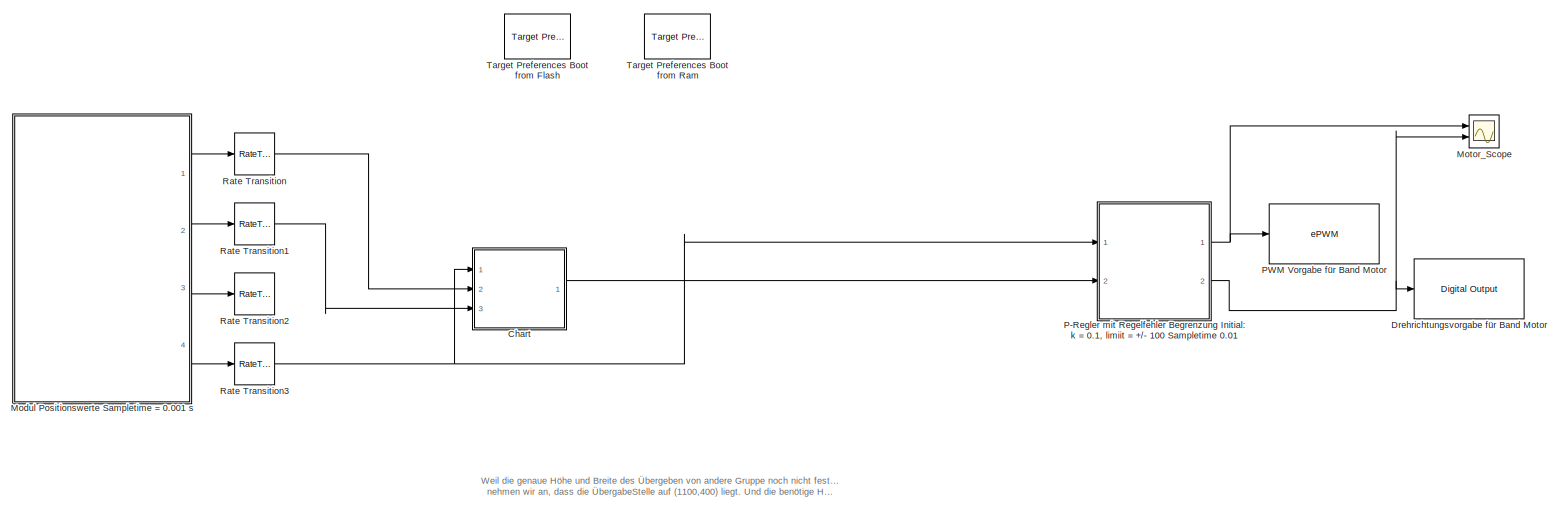
[diagram: root canvas - part 1/1, most of the canvas]
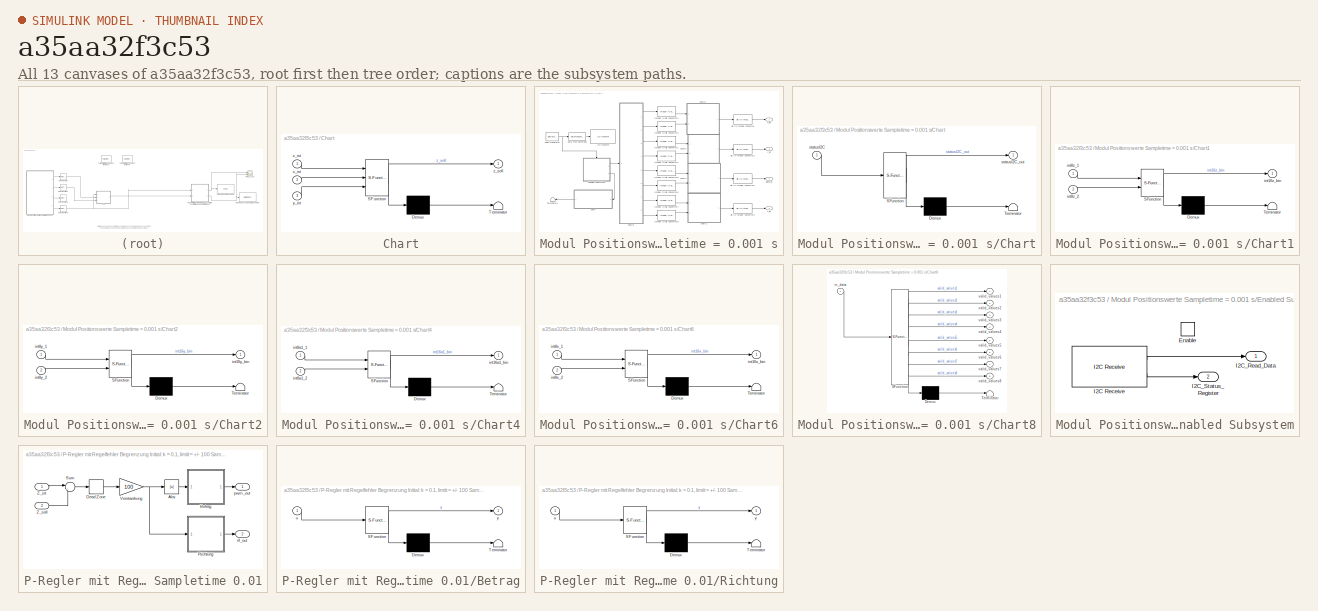
[diagram: thumbnail index - all 13 canvases of the model, root first then tree order]
MODEL slx_a35aa32f3c53
KIND model
BLOCK [SubSystem] Chart
  ErrorFcn = Stateflow.Translate.translate
  FunctionWithSeparateData = off
  MaskHideContents = off
  MinAlgLoopOccurrences = off
  Opaque = off
  PermitHierarchicalResolution = ExplicitOnly
  Ports = [3, 1]
  PropExecContextOutsideSubsystem = off
  RTWSystemCode = Auto
  RequestExecContextInheritance = off
  SFBlockType = Chart
  TreatAsAtomicUnit = on
BLOCK [Demux] Chart/ Demux 
  Outputs = 1
  Ports = [1, 1]
BLOCK [S-Function] Chart/ SFunction 
  EnableBusSupport = off
  FunctionName = sf_sfun
  PortCounts = [3 2]
  Ports = [3, 2]
  Tag = Stateflow S-Function Uebergeben 1
BLOCK [Terminator] Chart/ Terminator 
BLOCK [Inport] Chart/x_ist
  IconDisplay = Port number
  Port = 2
BLOCK [Inport] Chart/y_ist
  IconDisplay = Port number
  Port = 3
BLOCK [Inport] Chart/z_ist
  IconDisplay = Port number
BLOCK [Outport] Chart/z_soll
  IconDisplay = Port number
BLOCK [Reference] Drehrichtungsvorgabe für Band Motor  REF=c2833xlib/Digital Output
  GPIO_BIT0_Toggle = off
  GPIO_BIT1_Toggle = off
  GPIO_BIT2_Toggle = off
  GPIO_BIT3_Toggle = off
  GPIO_BIT4_Toggle = off
  GPIO_BIT5_Toggle = off
  GPIO_BIT6_Toggle = off
  GPIO_BIT7_Toggle = off
  GPIO_Bit0 = off
  GPIO_Bit1 = off
  GPIO_Bit2 = off
  GPIO_Bit3 = off
  GPIO_Bit4 = off
  GPIO_Bit5 = on
  GPIO_Bit6 = off
  GPIO_Bit7 = off
  GPIO_Number = GPIO16~GPIO23
  Ports = [1]
  SourceBlock = c2833xlib/Digital Output
  SourceType = C2833x GPIO Digital Output
  UserDataPersistent = on
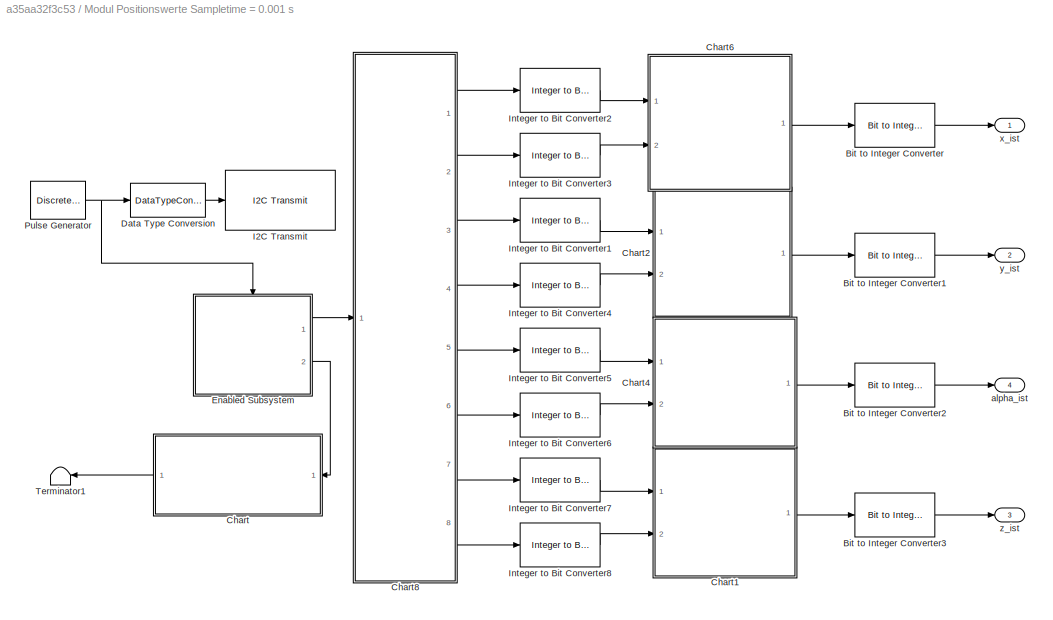
BLOCK [SubSystem] Modul Positionswerte Sampletime = 0.001 s
  FunctionWithSeparateData = off
  MaskHideContents = off
  MinAlgLoopOccurrences = off
  Opaque = off
  Ports = [0, 4]
  PropExecContextOutsideSubsystem = off
  RTWSystemCode = Auto
  RequestExecContextInheritance = off
BLOCK [Reference] Modul Positionswerte Sampletime = 0.001 s/Bit to Integer Converter  REF=commutil2/Bit to Integer
Converter
  Ports = [1, 1]
  SourceBlock = commutil2/Bit to Integer\nConverter
  SourceType = Bit to Integer Converter
  bitOrder = MSB first
  nbits = 16
  outDtype = Inherit via internal rule
  outDtypeSigned = Inherit via internal rule
  signedOutputValues = Signed
BLOCK [Reference] Modul Positionswerte Sampletime = 0.001 s/Bit to Integer Converter1  REF=commutil2/Bit to Integer
Converter
  Ports = [1, 1]
  SourceBlock = commutil2/Bit to Integer\nConverter
  SourceType = Bit to Integer Converter
  bitOrder = MSB first
  nbits = 16
  outDtype = Inherit via internal rule
  outDtypeSigned = Inherit via internal rule
  signedOutputValues = Signed
BLOCK [Reference] Modul Positionswerte Sampletime = 0.001 s/Bit to Integer Converter2  REF=commutil2/Bit to Integer
Converter
  Ports = [1, 1]
  SourceBlock = commutil2/Bit to Integer\nConverter
  SourceType = Bit to Integer Converter
  bitOrder = MSB first
  nbits = 16
  outDtype = Inherit via internal rule
  outDtypeSigned = Inherit via internal rule
  signedOutputValues = Signed
BLOCK [Reference] Modul Positionswerte Sampletime = 0.001 s/Bit to Integer Converter3  REF=commutil2/Bit to Integer
Converter
  Ports = [1, 1]
  SourceBlock = commutil2/Bit to Integer\nConverter
  SourceType = Bit to Integer Converter
  bitOrder = MSB first
  nbits = 16
  outDtype = Inherit via internal rule
  outDtypeSigned = Inherit via internal rule
  signedOutputValues = Signed
BLOCK [SubSystem] Modul Positionswerte Sampletime = 0.001 s/Chart
  ErrorFcn = Stateflow.Translate.translate
  FunctionWithSeparateData = off
  MaskHideContents = off
  MinAlgLoopOccurrences = off
  Opaque = off
  PermitHierarchicalResolution = ExplicitOnly
  Ports = [1, 1]
  PropExecContextOutsideSubsystem = off
  RTWSystemCode = Auto
  RequestExecContextInheritance = off
  SFBlockType = Chart
  TreatAsAtomicUnit = on
BLOCK [Demux] Modul Positionswerte Sampletime = 0.001 s/Chart/ Demux 
  Outputs = 1
  Ports = [1, 1]
BLOCK [S-Function] Modul Positionswerte Sampletime = 0.001 s/Chart/ SFunction 
  EnableBusSupport = on
  FunctionName = sf_sfun
  PortCounts = [1 2]
  Ports = [1, 2]
  Tag = Stateflow S-Function Uebergeben 21
BLOCK [Terminator] Modul Positionswerte Sampletime = 0.001 s/Chart/ Terminator 
BLOCK [Inport] Modul Positionswerte Sampletime = 0.001 s/Chart/statusI2C
  IconDisplay = Port number
BLOCK [Outport] Modul Positionswerte Sampletime = 0.001 s/Chart/statusI2C_out
  IconDisplay = Port number
BLOCK [SubSystem] Modul Positionswerte Sampletime = 0.001 s/Chart1
  ErrorFcn = Stateflow.Translate.translate
  FunctionWithSeparateData = off
  MaskHideContents = off
  MinAlgLoopOccurrences = off
  Opaque = off
  PermitHierarchicalResolution = ExplicitOnly
  Ports = [2, 1]
  PropExecContextOutsideSubsystem = off
  RTWSystemCode = Auto
  RequestExecContextInheritance = off
  SFBlockType = Chart
  TreatAsAtomicUnit = on
BLOCK [Demux] Modul Positionswerte Sampletime = 0.001 s/Chart1/ Demux 
  Outputs = 1
  Ports = [1, 1]
BLOCK [S-Function] Modul Positionswerte Sampletime = 0.001 s/Chart1/ SFunction 
  EnableBusSupport = off
  FunctionName = sf_sfun
  PortCounts = [2 2]
  Ports = [2, 2]
  Tag = Stateflow S-Function Uebergeben 2
BLOCK [Terminator] Modul Positionswerte Sampletime = 0.001 s/Chart1/ Terminator 
BLOCK [Outport] Modul Positionswerte Sampletime = 0.001 s/Chart1/int16z_bin
  IconDisplay = Port number
BLOCK [Inport] Modul Positionswerte Sampletime = 0.001 s/Chart1/int8z_1
  IconDisplay = Port number
BLOCK [Inport] Modul Positionswerte Sampletime = 0.001 s/Chart1/int8z_2
  IconDisplay = Port number
  Port = 2
BLOCK [SubSystem] Modul Positionswerte Sampletime = 0.001 s/Chart2
  ErrorFcn = Stateflow.Translate.translate
  FunctionWithSeparateData = off
  MaskHideContents = off
  MinAlgLoopOccurrences = off
  Opaque = off
  PermitHierarchicalResolution = ExplicitOnly
  Ports = [2, 1]
  PropExecContextOutsideSubsystem = off
  RTWSystemCode = Auto
  RequestExecContextInheritance = off
  SFBlockType = Chart
  TreatAsAtomicUnit = on
BLOCK [Demux] Modul Positionswerte Sampletime = 0.001 s/Chart2/ Demux 
  Outputs = 1
  Ports = [1, 1]
BLOCK [S-Function] Modul Positionswerte Sampletime = 0.001 s/Chart2/ SFunction 
  EnableBusSupport = off
  FunctionName = sf_sfun
  PortCounts = [2 2]
  Ports = [2, 2]
  Tag = Stateflow S-Function Uebergeben 3
BLOCK [Terminator] Modul Positionswerte Sampletime = 0.001 s/Chart2/ Terminator 
BLOCK [Outport] Modul Positionswerte Sampletime = 0.001 s/Chart2/int16y_bin
  IconDisplay = Port number
BLOCK [Inport] Modul Positionswerte Sampletime = 0.001 s/Chart2/int8y_1
  IconDisplay = Port number
BLOCK [Inport] Modul Positionswerte Sampletime = 0.001 s/Chart2/int8y_2
  IconDisplay = Port number
  Port = 2
BLOCK [SubSystem] Modul Positionswerte Sampletime = 0.001 s/Chart4
  ErrorFcn = Stateflow.Translate.translate
  FunctionWithSeparateData = off
  MaskHideContents = off
  MinAlgLoopOccurrences = off
  Opaque = off
  PermitHierarchicalResolution = ExplicitOnly
  Ports = [2, 1]
  PropExecContextOutsideSubsystem = off
  RTWSystemCode = Auto
  RequestExecContextInheritance = off
  SFBlockType = Chart
  TreatAsAtomicUnit = on
BLOCK [Demux] Modul Positionswerte Sampletime = 0.001 s/Chart4/ Demux 
  Outputs = 1
  Ports = [1, 1]
BLOCK [S-Function] Modul Positionswerte Sampletime = 0.001 s/Chart4/ SFunction 
  EnableBusSupport = off
  FunctionName = sf_sfun
  PortCounts = [2 2]
  Ports = [2, 2]
  Tag = Stateflow S-Function Uebergeben 5
BLOCK [Terminator] Modul Positionswerte Sampletime = 0.001 s/Chart4/ Terminator 
BLOCK [Outport] Modul Positionswerte Sampletime = 0.001 s/Chart4/int16a1_bin
  IconDisplay = Port number
BLOCK [Inport] Modul Positionswerte Sampletime = 0.001 s/Chart4/int8a1_1
  IconDisplay = Port number
BLOCK [Inport] Modul Positionswerte Sampletime = 0.001 s/Chart4/int8a1_2
  IconDisplay = Port number
  Port = 2
BLOCK [SubSystem] Modul Positionswerte Sampletime = 0.001 s/Chart6
  ErrorFcn = Stateflow.Translate.translate
  FunctionWithSeparateData = off
  MaskHideContents = off
  MinAlgLoopOccurrences = off
  Opaque = off
  PermitHierarchicalResolution = ExplicitOnly
  Ports = [2, 1]
  PropExecContextOutsideSubsystem = off
  RTWSystemCode = Auto
  RequestExecContextInheritance = off
  SFBlockType = Chart
  TreatAsAtomicUnit = on
BLOCK [Demux] Modul Positionswerte Sampletime = 0.001 s/Chart6/ Demux 
  Outputs = 1
  Ports = [1, 1]
BLOCK [S-Function] Modul Positionswerte Sampletime = 0.001 s/Chart6/ SFunction 
  EnableBusSupport = off
  FunctionName = sf_sfun
  PortCounts = [2 2]
  Ports = [2, 2]
  Tag = Stateflow S-Function Uebergeben 7
BLOCK [Terminator] Modul Positionswerte Sampletime = 0.001 s/Chart6/ Terminator 
BLOCK [Outport] Modul Positionswerte Sampletime = 0.001 s/Chart6/int16x_bin
  IconDisplay = Port number
BLOCK [Inport] Modul Positionswerte Sampletime = 0.001 s/Chart6/int8x_1
  IconDisplay = Port number
BLOCK [Inport] Modul Positionswerte Sampletime = 0.001 s/Chart6/int8x_2
  IconDisplay = Port number
  Port = 2
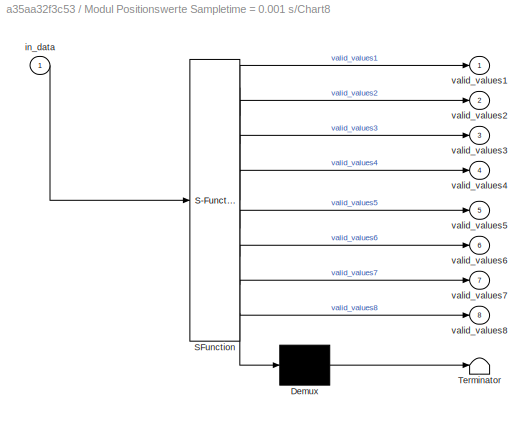
BLOCK [SubSystem] Modul Positionswerte Sampletime = 0.001 s/Chart8
  ErrorFcn = Stateflow.Translate.translate
  FunctionWithSeparateData = off
  MaskHideContents = off
  MinAlgLoopOccurrences = off
  Opaque = off
  PermitHierarchicalResolution = ExplicitOnly
  Ports = [1, 8]
  PropExecContextOutsideSubsystem = off
  RTWSystemCode = Auto
  RequestExecContextInheritance = off
  SFBlockType = Chart
  TreatAsAtomicUnit = on
BLOCK [Demux] Modul Positionswerte Sampletime = 0.001 s/Chart8/ Demux 
  Outputs = 1
  Ports = [1, 1]
BLOCK [S-Function] Modul Positionswerte Sampletime = 0.001 s/Chart8/ SFunction 
  EnableBusSupport = off
  FunctionName = sf_sfun
  PortCounts = [1 9]
  Ports = [1, 9]
  Tag = Stateflow S-Function Uebergeben 9
BLOCK [Terminator] Modul Positionswerte Sampletime = 0.001 s/Chart8/ Terminator 
BLOCK [Inport] Modul Positionswerte Sampletime = 0.001 s/Chart8/in_data
  IconDisplay = Port number
BLOCK [Outport] Modul Positionswerte Sampletime = 0.001 s/Chart8/valid_values1
  IconDisplay = Port number
BLOCK [Outport] Modul Positionswerte Sampletime = 0.001 s/Chart8/valid_values2
  IconDisplay = Port number
  Port = 2
BLOCK [Outport] Modul Positionswerte Sampletime = 0.001 s/Chart8/valid_values3
  IconDisplay = Port number
  Port = 3
BLOCK [Outport] Modul Positionswerte Sampletime = 0.001 s/Chart8/valid_values4
  IconDisplay = Port number
  Port = 4
BLOCK [Outport] Modul Positionswerte Sampletime = 0.001 s/Chart8/valid_values5
  IconDisplay = Port number
  Port = 5
BLOCK [Outport] Modul Positionswerte Sampletime = 0.001 s/Chart8/valid_values6
  IconDisplay = Port number
  Port = 6
BLOCK [Outport] Modul Positionswerte Sampletime = 0.001 s/Chart8/valid_values7
  IconDisplay = Port number
  Port = 7
BLOCK [Outport] Modul Positionswerte Sampletime = 0.001 s/Chart8/valid_values8
  IconDisplay = Port number
  Port = 8
BLOCK [DataTypeConversion] Modul Positionswerte Sampletime = 0.001 s/Data Type Conversion
  OutDataTypeStr = uint8
  RndMeth = Floor
  SaturateOnIntegerOverflow = off
BLOCK [SubSystem] Modul Positionswerte Sampletime = 0.001 s/Enabled Subsystem
  FunctionWithSeparateData = off
  MaskHideContents = off
  MinAlgLoopOccurrences = off
  Opaque = off
  Ports = [0, 2, 1]
  PropExecContextOutsideSubsystem = off
  RTWSystemCode = Auto
  RequestExecContextInheritance = off
  TreatAsAtomicUnit = on
BLOCK [EnablePort] Modul Positionswerte Sampletime = 0.001 s/Enabled Subsystem/Enable
  Ports = []
  StatesWhenEnabling = reset
BLOCK [Reference] Modul Positionswerte Sampletime = 0.001 s/Enabled Subsystem/I2C Receive  REF=c280xlib/I2C Receive
  NACK = on
  Ports = [0, 2]
  SAR = 80
  STP = off
  STR = on
  SourceBlock = c280xlib/I2C Receive
  SourceType = C28x I2C Receive
  addrFormat = 7-Bit addressing
  bitCount = 8
  dataLength = 10
  dataType = uint8
  initValue = 0
  saSource = Specify via dialog
  sampleTime = 0.001
BLOCK [Outport] Modul Positionswerte Sampletime = 0.001 s/Enabled Subsystem/I2C_Read_Data
  IconDisplay = Port number
BLOCK [Outport] Modul Positionswerte Sampletime = 0.001 s/Enabled Subsystem/I2C_Status_Register
  IconDisplay = Port number
  Port = 2
BLOCK [Reference] Modul Positionswerte Sampletime = 0.001 s/I2C Transmit  REF=c280xlib/I2C Transmit
  Ports = [1]
  RM = off
  SAR = 80
  STP = off
  STR = off
  SourceBlock = c280xlib/I2C Transmit
  SourceType = C28x I2C Transmit
  addrFormat = 7-Bit addressing
  bitCount = 8
  saSource = Specify via dialog
BLOCK [Reference] Modul Positionswerte Sampletime = 0.001 s/Integer to Bit Converter1  REF=commutil2/Integer to Bit
Converter
  Ports = [1, 1]
  SourceBlock = commutil2/Integer to Bit\nConverter
  SourceType = Integer to Bit Converter
  bitOrder = MSB first
  nbits = 8
  outDtype = uint8
  signedInputValues = Unsigned
BLOCK [Reference] Modul Positionswerte Sampletime = 0.001 s/Integer to Bit Converter2  REF=commutil2/Integer to Bit
Converter
  Ports = [1, 1]
  SourceBlock = commutil2/Integer to Bit\nConverter
  SourceType = Integer to Bit Converter
  bitOrder = MSB first
  nbits = 8
  outDtype = uint8
  signedInputValues = Unsigned
BLOCK [Reference] Modul Positionswerte Sampletime = 0.001 s/Integer to Bit Converter3  REF=commutil2/Integer to Bit
Converter
  Ports = [1, 1]
  SourceBlock = commutil2/Integer to Bit\nConverter
  SourceType = Integer to Bit Converter
  bitOrder = MSB first
  nbits = 8
  outDtype = uint8
  signedInputValues = Unsigned
BLOCK [Reference] Modul Positionswerte Sampletime = 0.001 s/Integer to Bit Converter4  REF=commutil2/Integer to Bit
Converter
  Ports = [1, 1]
  SourceBlock = commutil2/Integer to Bit\nConverter
  SourceType = Integer to Bit Converter
  bitOrder = MSB first
  nbits = 8
  outDtype = uint8
  signedInputValues = Unsigned
BLOCK [Reference] Modul Positionswerte Sampletime = 0.001 s/Integer to Bit Converter5  REF=commutil2/Integer to Bit
Converter
  Ports = [1, 1]
  SourceBlock = commutil2/Integer to Bit\nConverter
  SourceType = Integer to Bit Converter
  bitOrder = MSB first
  nbits = 8
  outDtype = uint8
  signedInputValues = Unsigned
BLOCK [Reference] Modul Positionswerte Sampletime = 0.001 s/Integer to Bit Converter6  REF=commutil2/Integer to Bit
Converter
  Ports = [1, 1]
  SourceBlock = commutil2/Integer to Bit\nConverter
  SourceType = Integer to Bit Converter
  bitOrder = MSB first
  nbits = 8
  outDtype = uint8
  signedInputValues = Unsigned
BLOCK [Reference] Modul Positionswerte Sampletime = 0.001 s/Integer to Bit Converter7  REF=commutil2/Integer to Bit
Converter
  Ports = [1, 1]
  SourceBlock = commutil2/Integer to Bit\nConverter
  SourceType = Integer to Bit Converter
  bitOrder = MSB first
  nbits = 8
  outDtype = uint8
  signedInputValues = Unsigned
BLOCK [Reference] Modul Positionswerte Sampletime = 0.001 s/Integer to Bit Converter8  REF=commutil2/Integer to Bit
Converter
  Ports = [1, 1]
  SourceBlock = commutil2/Integer to Bit\nConverter
  SourceType = Integer to Bit Converter
  bitOrder = MSB first
  nbits = 8
  outDtype = uint8
  signedInputValues = Unsigned
BLOCK [DiscretePulseGenerator] Modul Positionswerte Sampletime = 0.001 s/Pulse Generator
  Period = 250
  Ports = [0, 1]
  PulseWidth = 249
  SampleTime = 0.001
BLOCK [Terminator] Modul Positionswerte Sampletime = 0.001 s/Terminator1
BLOCK [Outport] Modul Positionswerte Sampletime = 0.001 s/alpha_ist
  IconDisplay = Port number
  Port = 4
BLOCK [Outport] Modul Positionswerte Sampletime = 0.001 s/x_ist
  IconDisplay = Port number
BLOCK [Outport] Modul Positionswerte Sampletime = 0.001 s/y_ist
  IconDisplay = Port number
  Port = 2
BLOCK [Outport] Modul Positionswerte Sampletime = 0.001 s/z_ist
  IconDisplay = Port number
  Port = 3
BLOCK [Scope] Motor_Scope
  DataFormat = StructureWithTime
  Floating = off
  NumInputPorts = 2
  Ports = [2]
  SampleTime = 0
  ShowLegends = off
  YMax = 5~5
  YMin = -5~-5
BLOCK [SubSystem] P-Regler mit Regelfehler Begrenzung Initial: k = 0.1, limiit = +//- 100 Sampletime 0.01
  FunctionWithSeparateData = off
  MaskHideContents = off
  MinAlgLoopOccurrences = off
  Opaque = off
  Ports = [2, 2]
  PropExecContextOutsideSubsystem = off
  RTWSystemCode = Auto
  RequestExecContextInheritance = off
BLOCK [Abs] P-Regler mit Regelfehler Begrenzung Initial: k = 0.1, limiit = +//- 100 Sampletime 0.01/Abs
  SampleTime = 0.01
  SaturateOnIntegerOverflow = off
BLOCK [SubSystem] P-Regler mit Regelfehler Begrenzung Initial: k = 0.1, limiit = +//- 100 Sampletime 0.01/Betrag
  ErrorFcn = Stateflow.Translate.translate
  FunctionWithSeparateData = off
  MaskHideContents = off
  MinAlgLoopOccurrences = off
  Opaque = off
  PermitHierarchicalResolution = ExplicitOnly
  Ports = [1, 1]
  PropExecContextOutsideSubsystem = off
  RTWSystemCode = Auto
  RequestExecContextInheritance = off
  SFBlockType = MATLAB Function
  SystemSampleTime = 0.01
  TreatAsAtomicUnit = on
BLOCK [Demux] P-Regler mit Regelfehler Begrenzung Initial: k = 0.1, limiit = +//- 100 Sampletime 0.01/Betrag/ Demux 
  Outputs = 1
  Ports = [1, 1]
BLOCK [S-Function] P-Regler mit Regelfehler Begrenzung Initial: k = 0.1, limiit = +//- 100 Sampletime 0.01/Betrag/ SFunction 
  EnableBusSupport = on
  FunctionName = sf_sfun
  PortCounts = [1 2]
  Ports = [1, 2]
  Tag = Stateflow S-Function Uebergeben 4
BLOCK [Terminator] P-Regler mit Regelfehler Begrenzung Initial: k = 0.1, limiit = +//- 100 Sampletime 0.01/Betrag/ Terminator 
BLOCK [Inport] P-Regler mit Regelfehler Begrenzung Initial: k = 0.1, limiit = +//- 100 Sampletime 0.01/Betrag/u
  IconDisplay = Port number
BLOCK [Outport] P-Regler mit Regelfehler Begrenzung Initial: k = 0.1, limiit = +//- 100 Sampletime 0.01/Betrag/y
  IconDisplay = Port number
BLOCK [DeadZone] P-Regler mit Regelfehler Begrenzung Initial: k = 0.1, limiit = +//- 100 Sampletime 0.01/Dead Zone
  LowerValue = -5
  SampleTime = 0.01
  UpperValue = 5
BLOCK [SubSystem] P-Regler mit Regelfehler Begrenzung Initial: k = 0.1, limiit = +//- 100 Sampletime 0.01/Richtung
  ErrorFcn = Stateflow.Translate.translate
  FunctionWithSeparateData = off
  MaskHideContents = off
  MinAlgLoopOccurrences = off
  Opaque = off
  PermitHierarchicalResolution = ExplicitOnly
  Ports = [1, 1]
  PropExecContextOutsideSubsystem = off
  RTWSystemCode = Auto
  RequestExecContextInheritance = off
  SFBlockType = MATLAB Function
  SystemSampleTime = 0.01
  TreatAsAtomicUnit = on
BLOCK [Demux] P-Regler mit Regelfehler Begrenzung Initial: k = 0.1, limiit = +//- 100 Sampletime 0.01/Richtung/ Demux 
  Outputs = 1
  Ports = [1, 1]
BLOCK [S-Function] P-Regler mit Regelfehler Begrenzung Initial: k = 0.1, limiit = +//- 100 Sampletime 0.01/Richtung/ SFunction 
  EnableBusSupport = on
  FunctionName = sf_sfun
  PortCounts = [1 2]
  Ports = [1, 2]
  Tag = Stateflow S-Function Uebergeben 6
BLOCK [Terminator] P-Regler mit Regelfehler Begrenzung Initial: k = 0.1, limiit = +//- 100 Sampletime 0.01/Richtung/ Terminator 
BLOCK [Inport] P-Regler mit Regelfehler Begrenzung Initial: k = 0.1, limiit = +//- 100 Sampletime 0.01/Richtung/u
  IconDisplay = Port number
BLOCK [Outport] P-Regler mit Regelfehler Begrenzung Initial: k = 0.1, limiit = +//- 100 Sampletime 0.01/Richtung/y
  IconDisplay = Port number
BLOCK [Sum] P-Regler mit Regelfehler Begrenzung Initial: k = 0.1, limiit = +//- 100 Sampletime 0.01/Sum
  IconShape = round
  InputSameDT = off
  Inputs = |-+
  OutDataTypeStr = Inherit: Inherit via internal rule
  Ports = [2, 1]
  SampleTime = 0.01
  SaturateOnIntegerOverflow = off
BLOCK [Gain] P-Regler mit Regelfehler Begrenzung Initial: k = 0.1, limiit = +//- 100 Sampletime 0.01/Verstaerkung
  Gain = 100
  OutDataTypeStr = Inherit: Inherit via internal rule
  ParamDataTypeStr = Inherit: Inherit via internal rule
  SampleTime = 0.01
  SaturateOnIntegerOverflow = off
BLOCK [Inport] P-Regler mit Regelfehler Begrenzung Initial: k = 0.1, limiit = +//- 100 Sampletime 0.01/Z_ist
  IconDisplay = Port number
BLOCK [Inport] P-Regler mit Regelfehler Begrenzung Initial: k = 0.1, limiit = +//- 100 Sampletime 0.01/Z_soll 
  IconDisplay = Port number
  Port = 2
BLOCK [Outport] P-Regler mit Regelfehler Begrenzung Initial: k = 0.1, limiit = +//- 100 Sampletime 0.01/pwm_out
  IconDisplay = Port number
BLOCK [Outport] P-Regler mit Regelfehler Begrenzung Initial: k = 0.1, limiit = +//- 100 Sampletime 0.01/r//l_out
  IconDisplay = Port number
  Port = 2
BLOCK [Reference] PWM Vorgabe für Band Motor   REF=c280xlib/ePWM
  CMPASource = Specify via dialog
  CMPAUnits = Clock cycles
  CMPAValue_clk = 32000
  CMPAValue_per = 50
  CMPBSource = Input port
  CMPBUnits = Percentages
  CMPBValue_clk = 32000
  CMPBValue_per = 0
  DBSource_ePWMxA = ePWMxA
  DBSource_ePWMxB = ePWMxA
  DBedgeDelay = Positive
  DBperiodSource = Specify via dialog
  DBpolarity = AH
  FEDperiod = 0
  HRPWM_CTLMode = Phase control mode
  HRPWM_EDGMode = Both edge
  HRPWM_LoadMode = CTR=ZERO
  HSclockPrescale = 1
  Ports = [1]
  REDperiod = 0
  SourceBlock = c280xlib/ePWM
  SourceType = C280x/C2833x ePWM
  adcrequestEventA = First event
  adcrequestEventB = First event
  adcstartEventA = CTR=Zero
  adcstartEventB = CTR=Zero
  adcstartModuleA = off
  adcstartModuleB = off
  checkMode = off
  chopperDuty = 12.5%
  chopperEnable = off
  chopperFirstwidth = 1
  chopperFrequency = 1
  clockPrescale = 1
  countingMode = Up
  ePWMxACSFenable = off
  ePWMxACSFvalue = Forcing Disable
  ePWMxALoadMode = Load on CTR=Zero
  ePWMxASFreload = Zero
  ePWMxAStatus = off
  ePWMxAValue = 0
  ePWMxAactionLogic1 = Do nothing
  ePWMxAactionLogic2 = Clear
  ePWMxAactionLogic3 = Set
  ePWMxAactionLogic4 = Do nothing
  ePWMxAactionLogic5 = Do nothing
  ePWMxAactionLogic6 = Do nothing
  ePWMxAforced = No action
  ePWMxBCSFenable = off
  ePWMxBCSFvalue = Forcing Disable
  ePWMxBLoadMode = Load on CTR=Zero
  ePWMxBSFreload = Zero
  ePWMxBStatus = on
  ePWMxBValue = 0
  ePWMxBactionLogic1 = Do nothing
  ePWMxBactionLogic2 = Set
  ePWMxBactionLogic3 = Do nothing
  ePWMxBactionLogic4 = Do nothing
  ePWMxBactionLogic5 = Clear
  ePWMxBactionLogic6 = Do nothing
  ePWMxBforced = No action
  enHRPWM = off
  enSFO = on
  enTzCbcIntr = off
  enTzOstIntr = off
  enableDBePWMxA = off
  enableDBePWMxB = off
  intEn = off
  intPrd = First event
  intSel = CTR=Zero
  periodUnits = Clock cycles
  phaseActive = 0
  phaseActiveEnable = Disable
  phaseDirection = Count down after sync
  synchronizationEnable = off
  synchronizationOption = Disable
  timerPeriod = -1
  timerPeriod_clk = 64000
  timerPeriod_sec = 0.0001
  timerSource = Specify via dialog
  tripZoneoption = OSHT
  tripZonesource = Specify via dialog
  tzselCBC1 = off
  tzselCBC2 = off
  tzselCBC3 = off
  tzselCBC4 = off
  tzselCBC5 = off
  tzselCBC6 = off
  tzselOSHT1 = off
  tzselOSHT2 = off
  tzselOSHT3 = off
  tzselOSHT4 = off
  tzselOSHT5 = off
  tzselOSHT6 = off
  useModule = ePWM2
BLOCK [RateTransition] Rate Transition
  OutPortSampleTime = 0.01
BLOCK [RateTransition] Rate Transition1
  OutPortSampleTime = 0.01
BLOCK [RateTransition] Rate Transition2
  OutPortSampleTime = 0.01
BLOCK [RateTransition] Rate Transition3
  OutPortSampleTime = 0.01
BLOCK [Reference] Target Preferences Boot from Flash  REF=idelinklib_tgtpref/Target Preferences
Template
  Commented = on
  Ports = []
  SourceBlock = idelinklib_tgtpref/Target Preferences\nTemplate
  SourceType = Target Preferences
  Tag = ccslinktgtpref_ccsv4
  UserDataPersistent = on
  library = off
BLOCK [Reference] Target Preferences Boot from Ram  REF=idelinklib_tgtpref/Target Preferences
Template
  Ports = []
  SourceBlock = idelinklib_tgtpref/Target Preferences\nTemplate
  SourceType = Target Preferences
  Tag = ccslinktgtpref_ccsv4
  UserDataPersistent = on
  library = off
ANNOTATION (root): Weil die genaue Höhe und Breite des Übergeben von andere Gruppe noch nicht festgelegt ist, nehmen wir an, dass die ÜbergabeStelle auf (1100,400) liegt. Und die benötige Höhe ist z=500.
LINE Chart:1 -> P-Regler mit Regelfehler Begrenzung Initial: k = 0.1, limiit = +//- 100 Sampletime 0.01:2
LINE Modul Positionswerte Sampletime = 0.001 s/Bit to Integer Converter1:1 -> Modul Positionswerte Sampletime = 0.001 s/y_ist:1
LINE Modul Positionswerte Sampletime = 0.001 s/Bit to Integer Converter2:1 -> Modul Positionswerte Sampletime = 0.001 s/alpha_ist:1
LINE Modul Positionswerte Sampletime = 0.001 s/Bit to Integer Converter3:1 -> Modul Positionswerte Sampletime = 0.001 s/z_ist:1
LINE Modul Positionswerte Sampletime = 0.001 s/Bit to Integer Converter:1 -> Modul Positionswerte Sampletime = 0.001 s/x_ist:1
LINE Modul Positionswerte Sampletime = 0.001 s/Chart1:1 -> Modul Positionswerte Sampletime = 0.001 s/Bit to Integer Converter3:1
LINE Modul Positionswerte Sampletime = 0.001 s/Chart2:1 -> Modul Positionswerte Sampletime = 0.001 s/Bit to Integer Converter1:1
LINE Modul Positionswerte Sampletime = 0.001 s/Chart4:1 -> Modul Positionswerte Sampletime = 0.001 s/Bit to Integer Converter2:1
LINE Modul Positionswerte Sampletime = 0.001 s/Chart6:1 -> Modul Positionswerte Sampletime = 0.001 s/Bit to Integer Converter:1
LINE Modul Positionswerte Sampletime = 0.001 s/Chart8:1 -> Modul Positionswerte Sampletime = 0.001 s/Integer to Bit Converter2:1
LINE Modul Positionswerte Sampletime = 0.001 s/Chart8:2 -> Modul Positionswerte Sampletime = 0.001 s/Integer to Bit Converter3:1
LINE Modul Positionswerte Sampletime = 0.001 s/Chart8:3 -> Modul Positionswerte Sampletime = 0.001 s/Integer to Bit Converter1:1
LINE Modul Positionswerte Sampletime = 0.001 s/Chart8:4 -> Modul Positionswerte Sampletime = 0.001 s/Integer to Bit Converter4:1
LINE Modul Positionswerte Sampletime = 0.001 s/Chart8:5 -> Modul Positionswerte Sampletime = 0.001 s/Integer to Bit Converter5:1
LINE Modul Positionswerte Sampletime = 0.001 s/Chart8:6 -> Modul Positionswerte Sampletime = 0.001 s/Integer to Bit Converter6:1
LINE Modul Positionswerte Sampletime = 0.001 s/Chart8:7 -> Modul Positionswerte Sampletime = 0.001 s/Integer to Bit Converter7:1
LINE Modul Positionswerte Sampletime = 0.001 s/Chart8:8 -> Modul Positionswerte Sampletime = 0.001 s/Integer to Bit Converter8:1
LINE Modul Positionswerte Sampletime = 0.001 s/Chart:1 -> Modul Positionswerte Sampletime = 0.001 s/Terminator1:1
LINE Modul Positionswerte Sampletime = 0.001 s/Data Type Conversion:1 -> Modul Positionswerte Sampletime = 0.001 s/I2C Transmit:1
LINE Modul Positionswerte Sampletime = 0.001 s/Enabled Subsystem/I2C Receive:1 -> Modul Positionswerte Sampletime = 0.001 s/Enabled Subsystem/I2C_Read_Data:1
LINE Modul Positionswerte Sampletime = 0.001 s/Enabled Subsystem/I2C Receive:2 -> Modul Positionswerte Sampletime = 0.001 s/Enabled Subsystem/I2C_Status_Register:1
LINE Modul Positionswerte Sampletime = 0.001 s/Enabled Subsystem:1 -> Modul Positionswerte Sampletime = 0.001 s/Chart8:1
LINE Modul Positionswerte Sampletime = 0.001 s/Enabled Subsystem:2 -> Modul Positionswerte Sampletime = 0.001 s/Chart:1
LINE Modul Positionswerte Sampletime = 0.001 s/Integer to Bit Converter1:1 -> Modul Positionswerte Sampletime = 0.001 s/Chart2:1
LINE Modul Positionswerte Sampletime = 0.001 s/Integer to Bit Converter2:1 -> Modul Positionswerte Sampletime = 0.001 s/Chart6:1
LINE Modul Positionswerte Sampletime = 0.001 s/Integer to Bit Converter3:1 -> Modul Positionswerte Sampletime = 0.001 s/Chart6:2
LINE Modul Positionswerte Sampletime = 0.001 s/Integer to Bit Converter4:1 -> Modul Positionswerte Sampletime = 0.001 s/Chart2:2
LINE Modul Positionswerte Sampletime = 0.001 s/Integer to Bit Converter5:1 -> Modul Positionswerte Sampletime = 0.001 s/Chart4:1
LINE Modul Positionswerte Sampletime = 0.001 s/Integer to Bit Converter6:1 -> Modul Positionswerte Sampletime = 0.001 s/Chart4:2
LINE Modul Positionswerte Sampletime = 0.001 s/Integer to Bit Converter7:1 -> Modul Positionswerte Sampletime = 0.001 s/Chart1:1
LINE Modul Positionswerte Sampletime = 0.001 s/Integer to Bit Converter8:1 -> Modul Positionswerte Sampletime = 0.001 s/Chart1:2
NET Modul Positionswerte Sampletime = 0.001 s/Pulse Generator:1 -> Modul Positionswerte Sampletime = 0.001 s/Data Type Conversion:1, Modul Positionswerte Sampletime = 0.001 s/Enabled Subsystem:enable
LINE Modul Positionswerte Sampletime = 0.001 s:1 -> Rate Transition:1
LINE Modul Positionswerte Sampletime = 0.001 s:2 -> Rate Transition1:1
LINE Modul Positionswerte Sampletime = 0.001 s:3 -> Rate Transition2:1
LINE Modul Positionswerte Sampletime = 0.001 s:4 -> Rate Transition3:1
LINE P-Regler mit Regelfehler Begrenzung Initial: k = 0.1, limiit = +//- 100 Sampletime 0.01/Abs:1 -> P-Regler mit Regelfehler Begrenzung Initial: k = 0.1, limiit = +//- 100 Sampletime 0.01/Betrag:1
LINE P-Regler mit Regelfehler Begrenzung Initial: k = 0.1, limiit = +//- 100 Sampletime 0.01/Betrag:1 -> P-Regler mit Regelfehler Begrenzung Initial: k = 0.1, limiit = +//- 100 Sampletime 0.01/pwm_out:1
LINE P-Regler mit Regelfehler Begrenzung Initial: k = 0.1, limiit = +//- 100 Sampletime 0.01/Dead Zone:1 -> P-Regler mit Regelfehler Begrenzung Initial: k = 0.1, limiit = +//- 100 Sampletime 0.01/Verstaerkung:1
LINE P-Regler mit Regelfehler Begrenzung Initial: k = 0.1, limiit = +//- 100 Sampletime 0.01/Richtung:1 -> P-Regler mit Regelfehler Begrenzung Initial: k = 0.1, limiit = +//- 100 Sampletime 0.01/r//l_out:1
LINE P-Regler mit Regelfehler Begrenzung Initial: k = 0.1, limiit = +//- 100 Sampletime 0.01/Sum:1 -> P-Regler mit Regelfehler Begrenzung Initial: k = 0.1, limiit = +//- 100 Sampletime 0.01/Dead Zone:1
NET P-Regler mit Regelfehler Begrenzung Initial: k = 0.1, limiit = +//- 100 Sampletime 0.01/Verstaerkung:1 -> P-Regler mit Regelfehler Begrenzung Initial: k = 0.1, limiit = +//- 100 Sampletime 0.01/Abs:1, P-Regler mit Regelfehler Begrenzung Initial: k = 0.1, limiit = +//- 100 Sampletime 0.01/Richtung:1
LINE P-Regler mit Regelfehler Begrenzung Initial: k = 0.1, limiit = +//- 100 Sampletime 0.01/Z_ist:1 -> P-Regler mit Regelfehler Begrenzung Initial: k = 0.1, limiit = +//- 100 Sampletime 0.01/Sum:1
LINE P-Regler mit Regelfehler Begrenzung Initial: k = 0.1, limiit = +//- 100 Sampletime 0.01/Z_soll :1 -> P-Regler mit Regelfehler Begrenzung Initial: k = 0.1, limiit = +//- 100 Sampletime 0.01/Sum:2
NET P-Regler mit Regelfehler Begrenzung Initial: k = 0.1, limiit = +//- 100 Sampletime 0.01:1 -> Motor_Scope:1, PWM Vorgabe für Band Motor :1
NET P-Regler mit Regelfehler Begrenzung Initial: k = 0.1, limiit = +//- 100 Sampletime 0.01:2 -> Drehrichtungsvorgabe für Band Motor:1, Motor_Scope:2
LINE Rate Transition1:1 -> Chart:3
NET Rate Transition3:1 -> Chart:1, P-Regler mit Regelfehler Begrenzung Initial: k = 0.1, limiit = +//- 100 Sampletime 0.01:1
LINE Rate Transition:1 -> Chart:2
note: NET lines group one-source signal fan-out (src -> all destinations, sorted); 1:1 wires keep LINE
